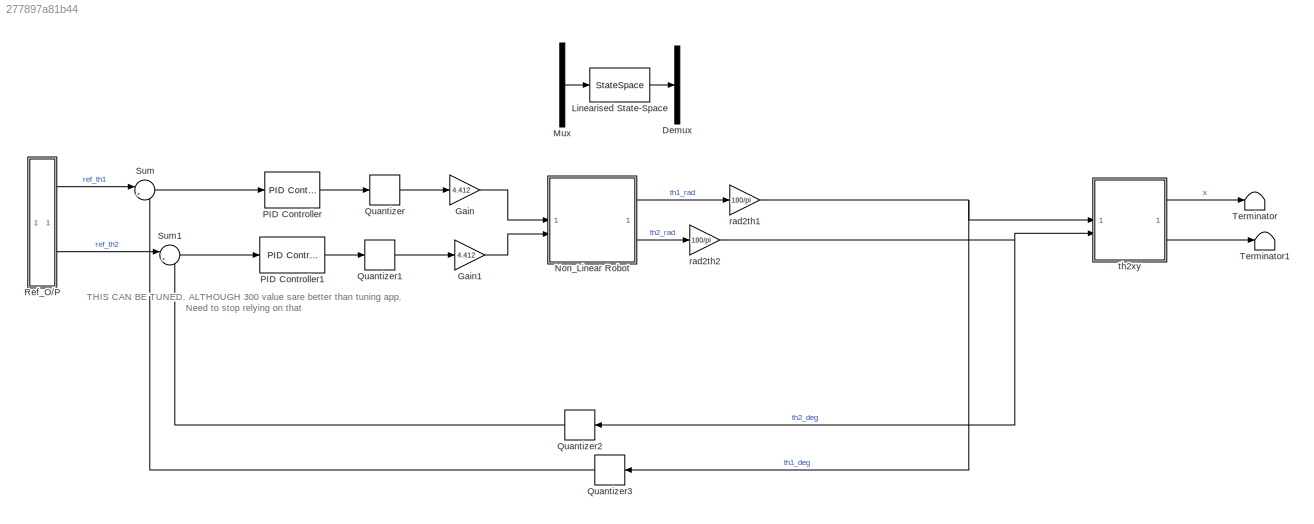
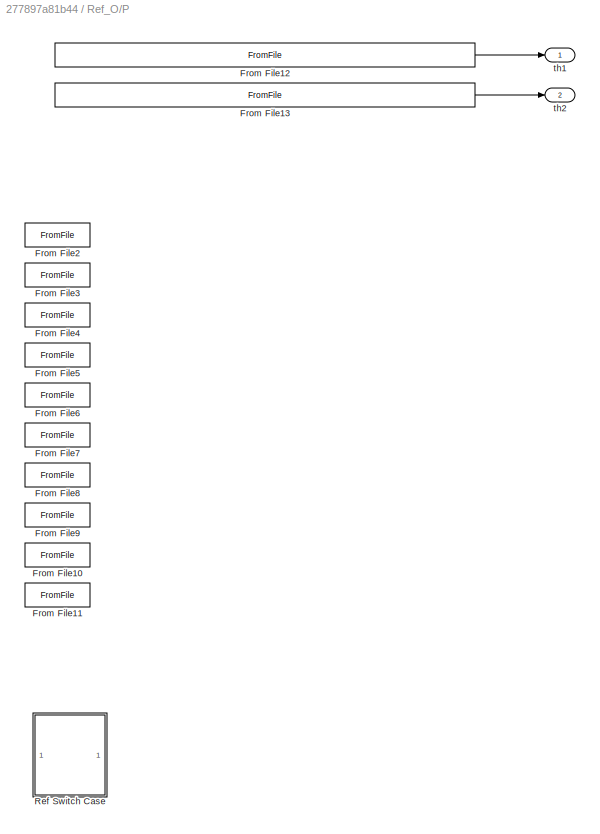
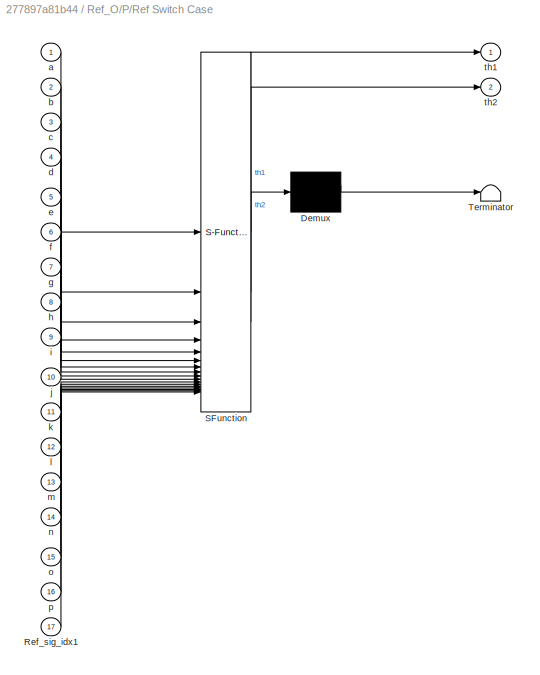
MODEL slx_277897a81b44
KIND model
CONFIG AbsTol = auto
CONFIG EnableMultiTasking = off
CONFIG FixedStep = auto
CONFIG MaxStep = auto
CONFIG MinStep = auto
CONFIG RelTol = 1e-3
CONFIG SampleTimeConstraint = Unconstrained
CONFIG SolverName = VariableStepAuto
CONFIG StartTime = 0.0
CONFIG StopTime = 2
BLOCK [Demux] Demux
  Commented = on
  Outputs = 2
BLOCK [Gain] Gain
  Gain = 4.412
BLOCK [Gain] Gain1
  Gain = 4.412
BLOCK [StateSpace] Linearised State-Space
  A = A
  B = B
  C = [1 0 0 0; 0 1 0 0]
  Commented = on
  D = [0 0; 0 0]
  InitialCondition = 0
BLOCK [Mux] Mux
  Commented = on
  DisplayOption = bar
  Inputs = 2
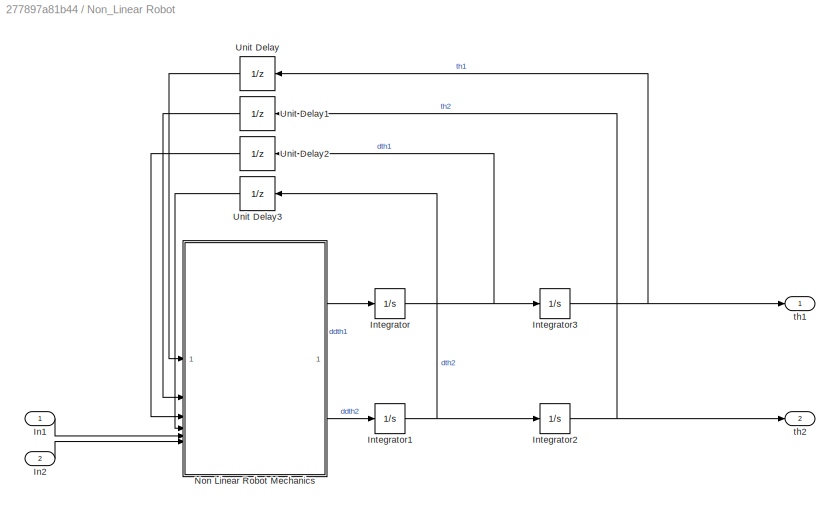
BLOCK [SubSystem] Non_Linear Robot
BLOCK [Inport] Non_Linear Robot/In1
BLOCK [Inport] Non_Linear Robot/In2
  Port = 2
BLOCK [Integrator] Non_Linear Robot/Integrator
BLOCK [Integrator] Non_Linear Robot/Integrator1
BLOCK [Integrator] Non_Linear Robot/Integrator2
BLOCK [Integrator] Non_Linear Robot/Integrator3
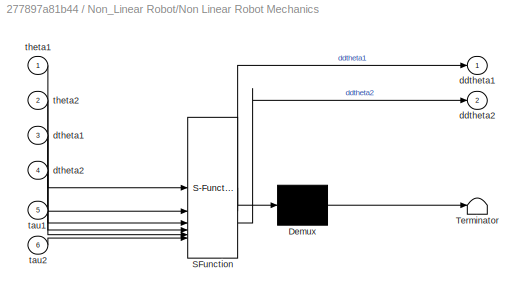
BLOCK [SubSystem] Non_Linear Robot/Non Linear Robot Mechanics
  ErrorFcn = Stateflow.Translate.translate
  PermitHierarchicalResolution = ExplicitOnly
  SFBlockType = MATLAB Function
  TreatAsAtomicUnit = on
BLOCK [Demux] Non_Linear Robot/Non Linear Robot Mechanics/ Demux 
  Outputs = 1
BLOCK [S-Function] Non_Linear Robot/Non Linear Robot Mechanics/ SFunction 
  EnableBusSupport = on
  FunctionName = sf_sfun
  Parameters = I1,I2,L1,L2,g,lc1,lc2,m1,m2
  PortCounts = [6 3]
  SFcnIsStateOwnerBlock = off
  SFunctionDeploymentMode = off
  Tag = Stateflow S-Function 1
BLOCK [Terminator] Non_Linear Robot/Non Linear Robot Mechanics/ Terminator 
BLOCK [Outport] Non_Linear Robot/Non Linear Robot Mechanics/ddtheta1
BLOCK [Outport] Non_Linear Robot/Non Linear Robot Mechanics/ddtheta2
  Port = 2
BLOCK [Inport] Non_Linear Robot/Non Linear Robot Mechanics/dtheta1
  Port = 3
BLOCK [Inport] Non_Linear Robot/Non Linear Robot Mechanics/dtheta2
  Port = 4
BLOCK [Inport] Non_Linear Robot/Non Linear Robot Mechanics/tau1
  Port = 5
BLOCK [Inport] Non_Linear Robot/Non Linear Robot Mechanics/tau2
  Port = 6
BLOCK [Inport] Non_Linear Robot/Non Linear Robot Mechanics/theta1
BLOCK [Inport] Non_Linear Robot/Non Linear Robot Mechanics/theta2
  Port = 2
BLOCK [UnitDelay] Non_Linear Robot/Unit Delay
  HasFrameUpgradeWarning = on
  NameLocation = top
  SampleTime = -1
BLOCK [UnitDelay] Non_Linear Robot/Unit Delay1
  HasFrameUpgradeWarning = on
  NameLocation = top
  SampleTime = -1
BLOCK [UnitDelay] Non_Linear Robot/Unit Delay2
  HasFrameUpgradeWarning = on
  NameLocation = top
  SampleTime = -1
BLOCK [UnitDelay] Non_Linear Robot/Unit Delay3
  HasFrameUpgradeWarning = on
  NameLocation = top
  SampleTime = -1
BLOCK [Outport] Non_Linear Robot/th1
BLOCK [Outport] Non_Linear Robot/th2
  Port = 2
BLOCK [Reference] PID Controller  REF=slpidlib/PID Controller
  LibrarySourceBlock = simulink/Continuous/PID Controller
  SourceBlock = slpidlib/PID Controller
  SourceType = PID 1dof
BLOCK [Reference] PID Controller1  REF=slpidlib/PID Controller
  LibrarySourceBlock = simulink/Continuous/PID Controller
  SourceBlock = slpidlib/PID Controller
  SourceType = PID 1dof
BLOCK [Quantizer] Quantizer
  QuantizationInterval = 1/(2*255)
BLOCK [Quantizer] Quantizer1
  QuantizationInterval = 1/(2*255)
BLOCK [Quantizer] Quantizer2
  NameLocation = top
  QuantizationInterval = 360/(131.25*16)
BLOCK [Quantizer] Quantizer3
  NameLocation = top
  QuantizationInterval = 360/(131.25*16)
BLOCK [SubSystem] Ref_O//P
BLOCK [FromFile] Ref_O//P/From File10
  Commented = on
  FileName = ref_tri_bs_th1.mat
  SampleTime = 0
BLOCK [FromFile] Ref_O//P/From File11
  Commented = on
  FileName = ref_tri_bs_th2.mat
  SampleTime = 0
BLOCK [FromFile] Ref_O//P/From File12
  FileName = <userpath>\Documents\Arduino\MVNLC\control\Uni2024_MVNLC\Simulink_Simulation\ref_source\2s\ref_circ_th1.mat
  SampleTime = 0
BLOCK [FromFile] Ref_O//P/From File13
  FileName = <userpath>\Documents\Arduino\MVNLC\control\Uni2024_MVNLC\Simulink_Simulation\ref_source\2s\ref_circ_th2.mat
  SampleTime = 0
BLOCK [FromFile] Ref_O//P/From File2
  Commented = on
  FileName = ref_sq_th1.mat
  SampleTime = 0
BLOCK [FromFile] Ref_O//P/From File3
  Commented = on
  FileName = ref_sq_th2.mat
  SampleTime = 0
BLOCK [FromFile] Ref_O//P/From File4
  Commented = on
  FileName = ref_tri_th1.mat
  SampleTime = 0
BLOCK [FromFile] Ref_O//P/From File5
  Commented = on
  FileName = ref_tri_th2.mat
  SampleTime = 0
BLOCK [FromFile] Ref_O//P/From File6
  Commented = on
  FileName = ref_circ_bs_th1.mat
  SampleTime = 0
BLOCK [FromFile] Ref_O//P/From File7
  Commented = on
  FileName = ref_circ_bs_th2.mat
  SampleTime = 0
BLOCK [FromFile] Ref_O//P/From File8
  Commented = on
  FileName = ref_sq_bs_th1.mat
  SampleTime = 0
BLOCK [FromFile] Ref_O//P/From File9
  Commented = on
  FileName = ref_sq_bs_th2.mat
  SampleTime = 0
BLOCK [SubSystem] Ref_O//P/Ref Switch Case
  Commented = on
  ErrorFcn = Stateflow.Translate.translate
  PermitHierarchicalResolution = ExplicitOnly
  SFBlockType = MATLAB Function
  TreatAsAtomicUnit = on
BLOCK [Demux] Ref_O//P/Ref Switch Case/ Demux 
  Outputs = 1
BLOCK [S-Function] Ref_O//P/Ref Switch Case/ SFunction 
  EnableBusSupport = on
  FunctionName = sf_sfun
  Parameters = Ref_sig_idx
  PortCounts = [17 3]
  SFcnIsStateOwnerBlock = off
  SFunctionDeploymentMode = off
  Tag = Stateflow S-Function 2
BLOCK [Terminator] Ref_O//P/Ref Switch Case/ Terminator 
BLOCK [Inport] Ref_O//P/Ref Switch Case/Ref_sig_idx1
  Port = 17
BLOCK [Inport] Ref_O//P/Ref Switch Case/a
BLOCK [Inport] Ref_O//P/Ref Switch Case/b
  Port = 2
BLOCK [Inport] Ref_O//P/Ref Switch Case/c
  Port = 3
BLOCK [Inport] Ref_O//P/Ref Switch Case/d
  Port = 4
BLOCK [Inport] Ref_O//P/Ref Switch Case/e
  Port = 5
BLOCK [Inport] Ref_O//P/Ref Switch Case/f
  Port = 6
BLOCK [Inport] Ref_O//P/Ref Switch Case/g
  Port = 7
BLOCK [Inport] Ref_O//P/Ref Switch Case/h
  Port = 8
BLOCK [Inport] Ref_O//P/Ref Switch Case/i
  Port = 9
BLOCK [Inport] Ref_O//P/Ref Switch Case/j
  Port = 10
BLOCK [Inport] Ref_O//P/Ref Switch Case/k
  Port = 11
BLOCK [Inport] Ref_O//P/Ref Switch Case/l
  Port = 12
BLOCK [Inport] Ref_O//P/Ref Switch Case/m
  Port = 13
BLOCK [Inport] Ref_O//P/Ref Switch Case/n
  Port = 14
BLOCK [Inport] Ref_O//P/Ref Switch Case/o
  Port = 15
BLOCK [Inport] Ref_O//P/Ref Switch Case/p
  Port = 16
BLOCK [Outport] Ref_O//P/Ref Switch Case/th1
BLOCK [Outport] Ref_O//P/Ref Switch Case/th2
  Port = 2
BLOCK [Outport] Ref_O//P/th1
BLOCK [Outport] Ref_O//P/th2
  Port = 2
BLOCK [Sum] Sum
  Inputs = |+-
BLOCK [Sum] Sum1
  Inputs = |+-
BLOCK [Terminator] Terminator
BLOCK [Terminator] Terminator1
BLOCK [Gain] rad2th1
  Gain = 180/pi
BLOCK [Gain] rad2th2
  Gain = 180/pi
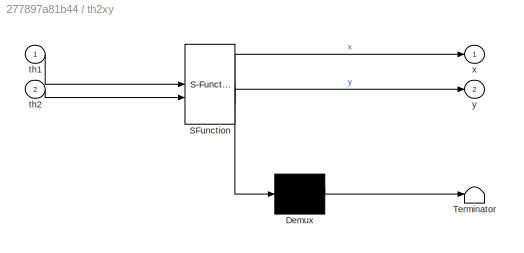
BLOCK [SubSystem] th2xy
  ErrorFcn = Stateflow.Translate.translate
  PermitHierarchicalResolution = ExplicitOnly
  SFBlockType = MATLAB Function
  TreatAsAtomicUnit = on
BLOCK [Demux] th2xy/ Demux 
  Outputs = 1
BLOCK [S-Function] th2xy/ SFunction 
  EnableBusSupport = on
  FunctionName = sf_sfun
  Parameters = L1,L2
  PortCounts = [2 3]
  SFcnIsStateOwnerBlock = off
  SFunctionDeploymentMode = off
  Tag = Stateflow S-Function 3
BLOCK [Terminator] th2xy/ Terminator 
BLOCK [Inport] th2xy/th1
BLOCK [Inport] th2xy/th2
  Port = 2
BLOCK [Outport] th2xy/x
BLOCK [Outport] th2xy/y
  Port = 2
ANNOTATION (root): THIS CAN BE TUNED. ALTHOUGH 300 value sare better than tuning app. Need to stop relying on that
LINE Gain1:1 -> Non_Linear Robot:2
LINE Gain:1 -> Non_Linear Robot:1
LINE Linearised State-Space:1 -> Demux:1
LINE Mux:1 -> Linearised State-Space:1
LINE Non_Linear Robot/In1:1 -> Non_Linear Robot/Non Linear Robot Mechanics:5
LINE Non_Linear Robot/In2:1 -> Non_Linear Robot/Non Linear Robot Mechanics:6
NET Non_Linear Robot/Integrator1:1 -> Non_Linear Robot/Integrator2:1, Non_Linear Robot/Unit Delay3:1
NET Non_Linear Robot/Integrator2:1 -> Non_Linear Robot/Unit Delay1:1, Non_Linear Robot/th2:1
NET Non_Linear Robot/Integrator3:1 -> Non_Linear Robot/Unit Delay:1, Non_Linear Robot/th1:1
NET Non_Linear Robot/Integrator:1 -> Non_Linear Robot/Integrator3:1, Non_Linear Robot/Unit Delay2:1
LINE Non_Linear Robot/Non Linear Robot Mechanics:1 -> Non_Linear Robot/Integrator:1
LINE Non_Linear Robot/Non Linear Robot Mechanics:2 -> Non_Linear Robot/Integrator1:1
LINE Non_Linear Robot/Unit Delay1:1 -> Non_Linear Robot/Non Linear Robot Mechanics:2
LINE Non_Linear Robot/Unit Delay2:1 -> Non_Linear Robot/Non Linear Robot Mechanics:3
LINE Non_Linear Robot/Unit Delay3:1 -> Non_Linear Robot/Non Linear Robot Mechanics:4
LINE Non_Linear Robot/Unit Delay:1 -> Non_Linear Robot/Non Linear Robot Mechanics:1
LINE Non_Linear Robot:1 -> rad2th1:1
LINE Non_Linear Robot:2 -> rad2th2:1
LINE PID Controller1:1 -> Quantizer1:1
LINE PID Controller:1 -> Quantizer:1
LINE Quantizer1:1 -> Gain1:1
LINE Quantizer2:1 -> Sum1:2
LINE Quantizer3:1 -> Sum:2
LINE Quantizer:1 -> Gain:1
LINE Ref_O//P/From File12:1 -> Ref_O//P/th1:1
LINE Ref_O//P/From File13:1 -> Ref_O//P/th2:1
LINE Ref_O//P:1 -> Sum:1
LINE Ref_O//P:2 -> Sum1:1
LINE Sum1:1 -> PID Controller1:1
LINE Sum:1 -> PID Controller:1
NET rad2th1:1 -> Quantizer3:1, th2xy:1
NET rad2th2:1 -> Quantizer2:1, th2xy:2
LINE th2xy:1 -> Terminator:1
LINE th2xy:2 -> Terminator1:1
note: NET lines group one-source signal fan-out (src -> all destinations, sorted); 1:1 wires keep LINE
CHART Non_Linear Robot/Non Linear Robot Mechanics states=1 transitions=1
  STATE_LABEL 'eML_blk_kernel()'
  STATE_LABEL 'SCRIPT:\nfunction [ddtheta1, ddtheta2]= Robot_SS(theta1, theta2, dtheta1, dtheta2, tau1, tau2, m2, m1, L1, L2, I1, I2, g, lc1, lc2)\n    % Mass matrix M(theta)\n    M11 = m1 * lc1^2 + m2 * (L1^2 + lc2^2 + 2 * L1 * lc2 * cos(theta2)) + I1 + I2;\n    M12 = m2 * (lc2^2 + L1 * lc2 * cos(theta2)) + I2;\n    M21 = M12;\n    M22 = m2 * lc2^2 + I2;\n    M = [M11, M12; M21, M22];\n    \n    % Coriolis matrix C(thet...<+838ch>'
CHART Ref_O//P/Ref Switch Case states=1 transitions=1
  STATE_LABEL 'eML_blk_kernel()'
  STATE_LABEL 'SCRIPT:\nfunction [th1, th2] = ref_switch(Ref_sig_idx, a, b, c, d, e, f, g, h, i, j, k, l, m, n, o, p, Ref_sig_idx1)\n    if Ref_sig_idx == 0\n        % circ base\n        th1 = a;\n        th2 = b;\n    elseif Ref_sig_idx == 1\n        % sq base\n        th1 = c;\n        th2 = d;\n    elseif Ref_sig_idx == 2\n        % tri base\n        th1 = e;\n        th2 = f;\n    end\n    if Ref_sig_idx == 3\n        % cir...<+531ch>'
CHART th2xy states=1 transitions=1
  STATE_LABEL 'eML_blk_kernel()'
  STATE_LABEL 'SCRIPT:\nfunction [x,y] = th_to_xy(th1, th2, L1, L2)\n    x = L1*cos(deg2rad(th1)) + L2*cos(deg2rad(th2));\n    y = L1*sin(deg2rad(th1)) + L2*sin(deg2rad(th2));\n'
CHART  states=0 transitions=0
CHART  states=0 transitions=0
CHART  states=0 transitions=0
